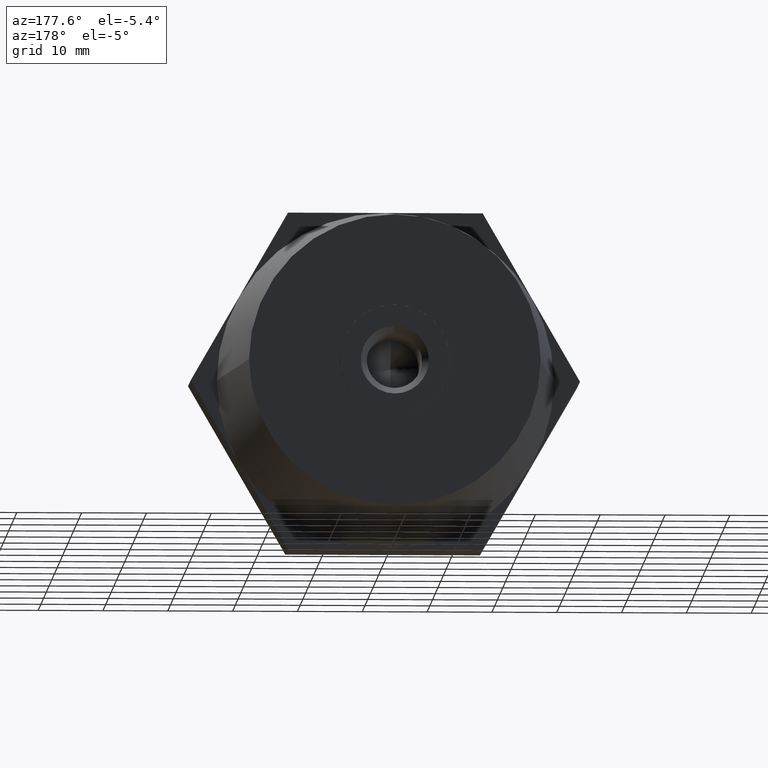
[diagram: clean part render]
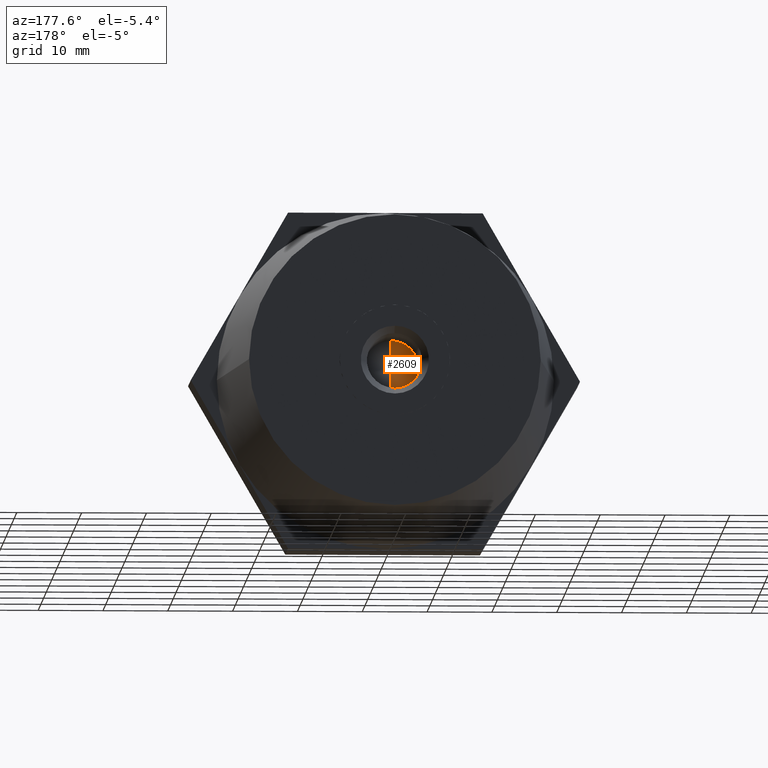
[diagram: same view with one face highlighted and labeled with its STEP entity id]
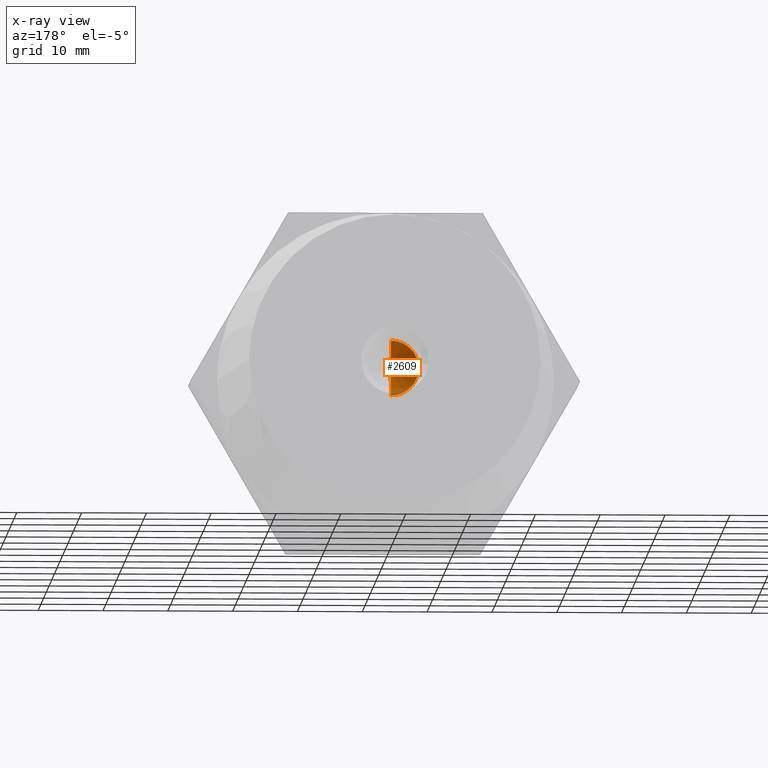
[diagram: x-ray of the same camera — body ghosted, the highlighted face saturated]
A machine part, auxiliary view. The second image highlights one B-rep face of the part: STEP entity #2609.
The next image is the same camera in x-ray: the body ghosted, the highlighted face saturated — about 8% of this face is hidden behind the body in this view.
In plain terms, the highlighted conical surface has half-angle 59 deg.
Its self-contained STEP definition (entity closure, byte-faithful):
#11 = FACE_OUTER_BOUND ( 'NONE', #381, .T. ) ;
#30 = ORIENTED_EDGE ( 'NONE', *, *, #3479, .F. ) ;
#116 = VECTOR ( 'NONE', #2822, 999.9999999999998900 ) ;
#224 = LINE ( 'NONE', #1899, #116 ) ;
#326 = DIRECTION ( 'NONE',  ( 0.0000000000000000000, 0.5150380749100549300, 0.8571673007021118900 ) ) ;
#343 = CONICAL_SURFACE ( 'NONE', #2931, 4.250000000000000000, 1.029744258676653600 ) ;
#354 = CARTESIAN_POINT ( 'NONE',  ( 0.0000000000000000000, 3.050000000000000300, 0.0000000000000000000 ) ) ;
#376 = ORIENTED_EDGE ( 'NONE', *, *, #3544, .T. ) ;
#381 = EDGE_LOOP ( 'NONE', ( #30, #376, #1573 ) ) ;
#839 = VERTEX_POINT ( 'NONE', #2811 ) ;
#840 = VECTOR ( 'NONE', #326, 999.9999999999998900 ) ;
#864 = CARTESIAN_POINT ( 'NONE',  ( 0.0000000000000000000, 3.050000000000000300, 0.0000000000000000000 ) ) ;
#941 = CARTESIAN_POINT ( 'NONE',  ( -4.042230298373044700E-015, 0.4963423691328700000, 0.0000000000000000000 ) ) ;
#1221 = CARTESIAN_POINT ( 'NONE',  ( 5.204748896376250700E-016, 3.050000000000000300, -4.250000000000000000 ) ) ;
#1235 = CARTESIAN_POINT ( 'NONE',  ( 0.0000000000000000000, 3.050000000000000300, 4.250000000000000000 ) ) ;
#1345 = DIRECTION ( 'NONE',  ( 0.0000000000000000000, 0.0000000000000000000, 1.000000000000000000 ) ) ;
#1572 = EDGE_CURVE ( 'NONE', #3418, #839, #1928, .T. ) ;
#1573 = ORIENTED_EDGE ( 'NONE', *, *, #1572, .T. ) ;
#1634 = AXIS2_PLACEMENT_3D ( 'NONE', #864, #3294, #3307 ) ;
#1899 = CARTESIAN_POINT ( 'NONE',  ( 5.204748896376250700E-016, 3.050000000000000300, -4.250000000000000000 ) ) ;
#1928 = CIRCLE ( 'NONE', #1634, 4.250000000000000000 ) ;
#2609 = ADVANCED_FACE ( 'NONE', ( #11 ), #343, .F. ) ;
#2811 = CARTESIAN_POINT ( 'NONE',  ( 0.0000000000000000000, 3.050000000000000300, 4.250000000000000000 ) ) ;
#2822 = DIRECTION ( 'NONE',  ( 1.049727191138618200E-016, 0.5150380749100549300, -0.8571673007021118900 ) ) ;
#2931 = AXIS2_PLACEMENT_3D ( 'NONE', #354, #3107, #1345 ) ;
#3107 = DIRECTION ( 'NONE',  ( 0.0000000000000000000, 1.000000000000000000, 0.0000000000000000000 ) ) ;
#3294 = DIRECTION ( 'NONE',  ( 0.0000000000000000000, 1.000000000000000000, 0.0000000000000000000 ) ) ;
#3307 = DIRECTION ( 'NONE',  ( 0.0000000000000000000, 0.0000000000000000000, 1.000000000000000000 ) ) ;
#3418 = VERTEX_POINT ( 'NONE', #1221 ) ;
#3473 = LINE ( 'NONE', #1235, #840 ) ;
#3479 = EDGE_CURVE ( 'NONE', #3523, #839, #3473, .T. ) ;
#3523 = VERTEX_POINT ( 'NONE', #941 ) ;
#3544 = EDGE_CURVE ( 'NONE', #3523, #3418, #224, .T. ) ;